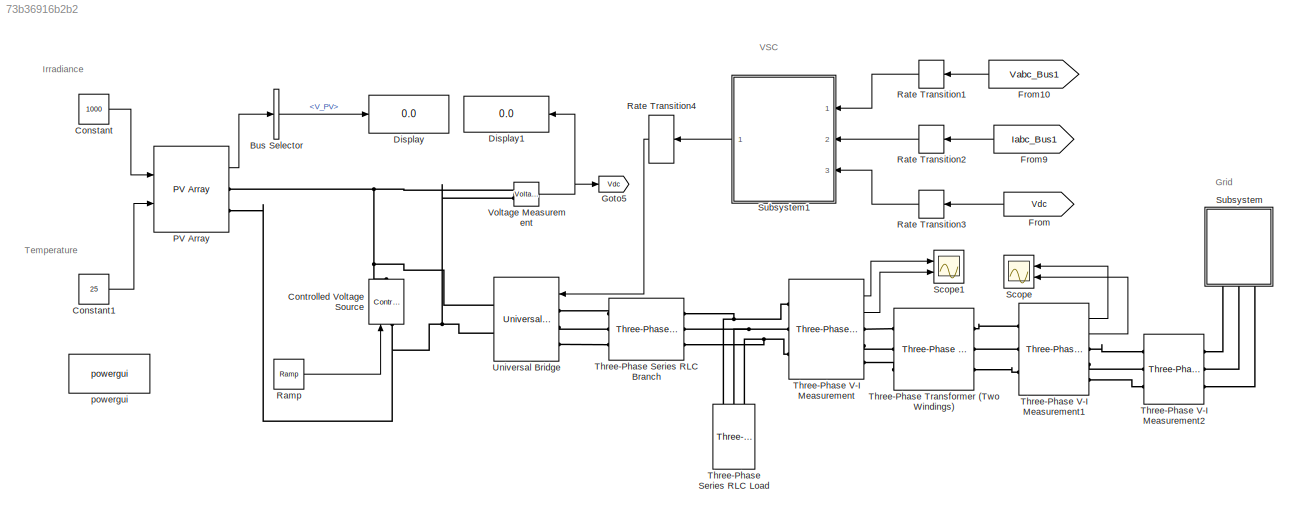
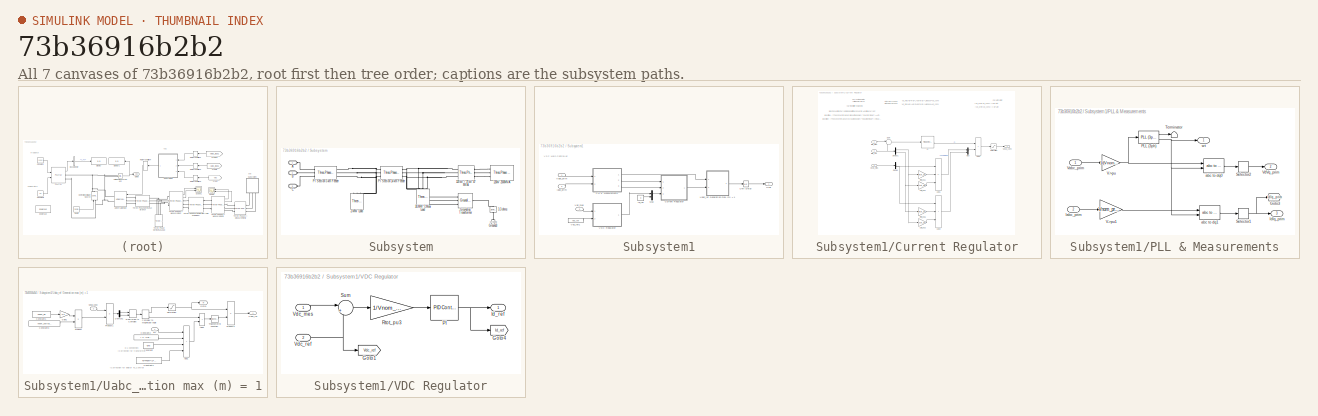
[diagram: thumbnail index - all 7 canvases of the model, root first then tree order]
MODEL slx_73b36916b2b2
KIND model
CONFIG AbsTol = auto
CONFIG EnableMultiTasking = off
CONFIG FixedStep = auto
CONFIG MaxStep = auto
CONFIG MinStep = auto
CONFIG RelTol = 1e-3
CONFIG SampleTimeConstraint = Unconstrained
CONFIG Solver = VariableStepAuto
CONFIG SolverName = VariableStepAuto
CONFIG StartTime = 0.0
CONFIG StopTime = 1
BLOCK [BusSelector] Bus Selector
  OutputSignals = V_PV
  Ports = [1, 1]
BLOCK [Constant] Constant
  Value = 1000
BLOCK [Constant] Constant1
  Value = 25
BLOCK [Reference] Controlled Voltage Source  REF=powerlib/Electrical
Sources/Controlled Voltage Source
  NameLocation = left
  Ports = [1, 0, 0, 0, 0, 1, 1]
  SourceBlock = powerlib/Electrical\nSources/Controlled Voltage Source
  SourceProductBaseCode = PS
  SourceType = Controlled Voltage Source
BLOCK [Display] Display
  Decimation = 1
  Ports = [1]
BLOCK [Display] Display1
  Decimation = 2000
  Format = bank
  Ports = [1]
BLOCK [From] From
  GotoTag = Vdc
  TagVisibility = global
BLOCK [From] From10
  CloseFcn = tagdialog Close
  GotoTag = Vabc_Bus1
  TagVisibility = global
BLOCK [From] From9
  CloseFcn = tagdialog Close
  GotoTag = Iabc_Bus1
  TagVisibility = global
BLOCK [Goto] Goto5
  GotoTag = Vdc
  TagVisibility = global
BLOCK [Reference] PV Array  REF=re_lib/Solar/PV Array
  Ports = [2, 1, 0, 0, 0, 0, 2]
  SourceBlock = re_lib/Solar/PV Array
  SourceProductBaseCode = PS
  SourceType = PV array
BLOCK [Reference] Ramp  REF=simulink/Sources/Ramp
  Ports = [0, 1]
  SourceBlock = simulink/Sources/Ramp
  SourceProductBaseCode = SL
  SourceType = Ramp
BLOCK [RateTransition] Rate Transition1
  NameLocation = top
  OutPortSampleTime = 1e-4
BLOCK [RateTransition] Rate Transition2
  NameLocation = top
  OutPortSampleTime = 1e-4
BLOCK [RateTransition] Rate Transition3
  OutPortSampleTime = 1e-4
BLOCK [RateTransition] Rate Transition4
  NameLocation = top
  OutPortSampleTime = 5e-5
BLOCK [Scope] Scope
  Floating = off
  NameLocation = top
  NumInputPorts = 2
  Ports = [2]
  ScopeSpecificationString = Simulink.scopes.TimeScopeBlockCfg('CurrentConfiguration', extmgr.ConfigurationSet(extmgr.Configuration('Core','General UI',true,'FigureColor',[1 1 1]),extmgr.Configuration('Core','Source UI',true),extmgr.Configuration('Sources','WiredSimulink',true,'DataLoggingVariableName','ScopeData1'),extmgr.Configuration('Visuals','Time Domain',true,'SerializedDisplays',{struct('MinYLimReal','-24616.27198','Ma...<+3019ch>
BLOCK [Scope] Scope1
  Floating = off
  NumInputPorts = 2
  Ports = [2]
  ScopeSpecificationString = Simulink.scopes.TimeScopeBlockCfg('CurrentConfiguration', extmgr.ConfigurationSet(extmgr.Configuration('Core','General UI',true,'FigureColor',[1 1 1]),extmgr.Configuration('Core','Source UI',true),extmgr.Configuration('Sources','WiredSimulink',true,'DataLoggingVariableName','ScopeData2'),extmgr.Configuration('Visuals','Time Domain',true,'SerializedDisplays',{struct('MinYLimReal','-318.2004','MaxYL...<+3007ch>
BLOCK [SubSystem] Subsystem
  NameLocation = left
  Ports = [0, 0, 0, 0, 0, 3]
  RequestExecContextInheritance = off
BLOCK [Reference] Subsystem/120 kV // 25 kV 47 MVA  REF=powerlib/Elements/Three-Phase
Transformer
(Two Windings)
  AttributesFormatString = \n
  Ports = [0, 0, 0, 0, 0, 3, 3]
  SourceBlock = powerlib/Elements/Three-Phase\nTransformer\n(Two Windings)
  SourceProductBaseCode = PS
  SourceType = Three-Phase Transformer (Two Windings)
BLOCK [Reference] Subsystem/120kV 2500MVA  REF=powerlib/Electrical
Sources/Three-Phase Source
  Ports = [0, 0, 0, 0, 0, 0, 3]
  SourceBlock = powerlib/Electrical\nSources/Three-Phase Source
  SourceProductBaseCode = PS
  SourceType = Three-Phase Source
BLOCK [Reference] Subsystem/2-MW Load  REF=powerlib/Elements/Three-Phase
Parallel RLC Load
  AttributesFormatString = \n
  NameLocation = left
  Ports = [0, 0, 0, 0, 0, 3]
  SourceBlock = powerlib/Elements/Three-Phase\nParallel RLC Load
  SourceProductBaseCode = PS
  SourceType = Three-Phase Parallel RLC Load
BLOCK [Reference] Subsystem/3.3 ohms   REF=powerlib/Elements/Series RLC Branch
  NameLocation = right
  Ports = [0, 0, 0, 0, 0, 1, 1]
  SourceBlock = powerlib/Elements/Series RLC Branch
  SourceProductBaseCode = PS
  SourceType = Series RLC Branch
BLOCK [Reference] Subsystem/30-MW 2-Mvar Load  REF=powerlib/Elements/Three-Phase
Parallel RLC Load
  AttributesFormatString = \n
  NameLocation = left
  Ports = [0, 0, 0, 0, 0, 3]
  SourceBlock = powerlib/Elements/Three-Phase\nParallel RLC Load
  SourceProductBaseCode = PS
  SourceType = Three-Phase Parallel RLC Load
BLOCK [PMIOPort] Subsystem/A
  Side = Left
BLOCK [PMIOPort] Subsystem/B
  Port = 2
  Side = Left
BLOCK [PMIOPort] Subsystem/C
  Port = 3
  Side = Left
BLOCK [Reference] Subsystem/Ground3  REF=powerlib/Elements/Ground
  AttributesFormatString = \n
  NameLocation = right
  Ports = [0, 0, 0, 0, 0, 1]
  SourceBlock = powerlib/Elements/Ground
  SourceProductBaseCode = PS
  SourceType = Ground
BLOCK [Reference] Subsystem/Grounding Transformer   REF=powerlib/Elements/Grounding
Transformer 
  Ports = [0, 0, 0, 0, 0, 3, 1]
  SourceBlock = powerlib/Elements/Grounding\nTransformer
  SourceProductBaseCode = PS
  SourceType = Grounding Transformer
BLOCK [Reference] Subsystem/PI Section 14 km Feeder  REF=powerlib/Elements/Three-Phase
PI Section Line
  AttributesFormatString = \n
  Ports = [0, 0, 0, 0, 0, 3, 3]
  SourceBlock = powerlib/Elements/Three-Phase\nPI Section Line
  SourceProductBaseCode = PS
  SourceType = Three-Phase PI Section Line
BLOCK [Reference] Subsystem/PI Section 5 km Feeder  REF=powerlib/Elements/Three-Phase
PI Section Line
  AttributesFormatString = \n
  Ports = [0, 0, 0, 0, 0, 3, 3]
  SourceBlock = powerlib/Elements/Three-Phase\nPI Section Line
  SourceProductBaseCode = PS
  SourceType = Three-Phase PI Section Line
BLOCK [SubSystem] Subsystem1
  Ports = [3, 1]
  RequestExecContextInheritance = off
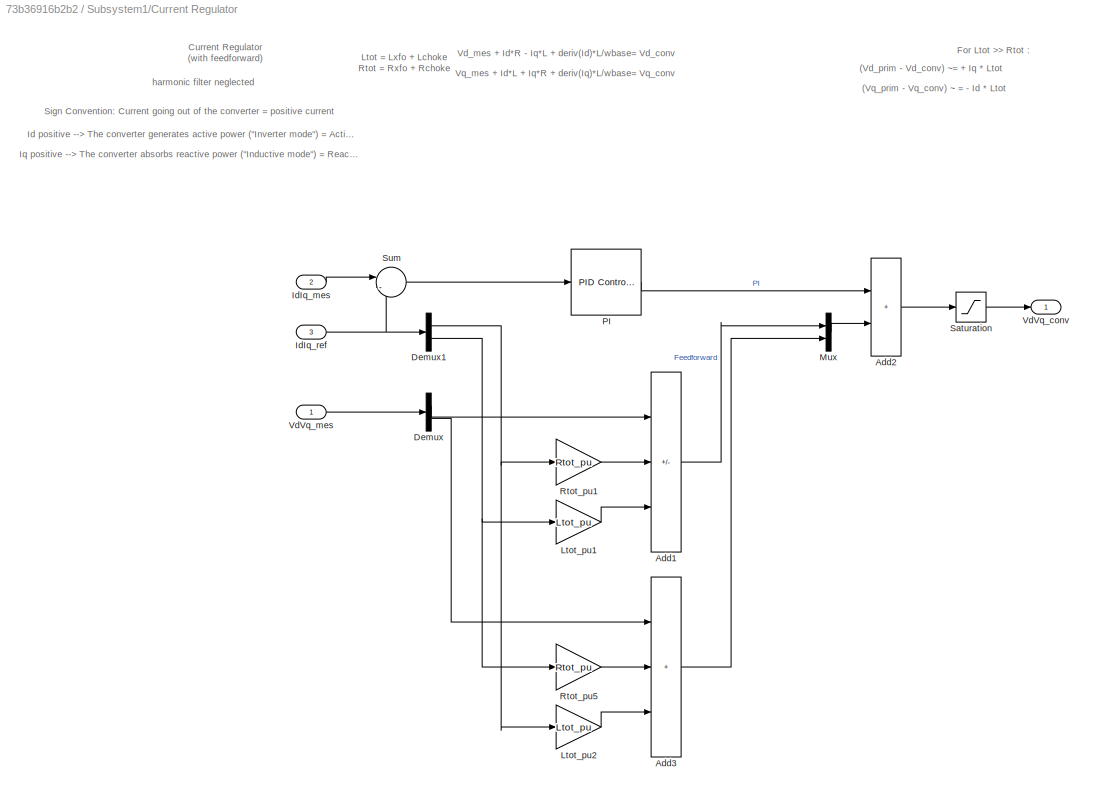
BLOCK [SubSystem] Subsystem1/Current Regulator
  Ports = [3, 1]
  RequestExecContextInheritance = off
BLOCK [Sum] Subsystem1/Current Regulator/Add1
  IconShape = rectangular
  Inputs = ++-
  Ports = [3, 1]
BLOCK [Sum] Subsystem1/Current Regulator/Add2
  IconShape = rectangular
  Ports = [2, 1]
BLOCK [Sum] Subsystem1/Current Regulator/Add3
  IconShape = rectangular
  Inputs = +++
  Ports = [3, 1]
BLOCK [Demux] Subsystem1/Current Regulator/Demux
  Outputs = 2
  Ports = [1, 2]
BLOCK [Demux] Subsystem1/Current Regulator/Demux1
  Outputs = 2
  Ports = [1, 2]
BLOCK [Inport] Subsystem1/Current Regulator/IdIq_mes
  Port = 2
  PortDimensions = 2
BLOCK [Inport] Subsystem1/Current Regulator/IdIq_ref
  Port = 3
  PortDimensions = 2
BLOCK [Gain] Subsystem1/Current Regulator/Ltot_pu1
  Gain = Ltot_pu
  OutDataTypeStr = Inherit: Same as input
  ParamDataTypeStr = Inherit: Same as input
  SaturateOnIntegerOverflow = on
BLOCK [Gain] Subsystem1/Current Regulator/Ltot_pu2
  Gain = Ltot_pu
  OutDataTypeStr = Inherit: Same as input
  ParamDataTypeStr = Inherit: Same as input
  SaturateOnIntegerOverflow = on
BLOCK [Mux] Subsystem1/Current Regulator/Mux
  DisplayOption = bar
  Inputs = 2
  Ports = [2, 1]
BLOCK [Reference] Subsystem1/Current Regulator/PI  REF=simulink/Continuous/PID Controller
  Ports = [1, 1]
  SourceBlock = simulink/Continuous/PID Controller
  SourceProductBaseCode = SL
  SourceType = PID 1dof
BLOCK [Gain] Subsystem1/Current Regulator/Rtot_pu1
  Gain = Rtot_pu
  NameLocation = top
  OutDataTypeStr = Inherit: Same as input
  ParamDataTypeStr = Inherit: Same as input
  SaturateOnIntegerOverflow = on
BLOCK [Gain] Subsystem1/Current Regulator/Rtot_pu5
  Gain = Rtot_pu
  NameLocation = top
  OutDataTypeStr = Inherit: Same as input
  ParamDataTypeStr = Inherit: Same as input
  SaturateOnIntegerOverflow = on
BLOCK [Saturate] Subsystem1/Current Regulator/Saturation
  LowerLimit = -2
  UpperLimit = 2
BLOCK [Sum] Subsystem1/Current Regulator/Sum
  Inputs = |-+
  Ports = [2, 1]
BLOCK [Outport] Subsystem1/Current Regulator/VdVq_conv
  VectorParamsAs1DForOutWhenUnconnected = off
BLOCK [Inport] Subsystem1/Current Regulator/VdVq_mes
  PortDimensions = 2
BLOCK [Inport] Subsystem1/Iabc_prim
  Port = 2
  PortDimensions = 3
BLOCK [Constant] Subsystem1/Iq_ref
  Value = 0
BLOCK [Mux] Subsystem1/Mux
  DisplayOption = bar
  Inputs = 2
  Ports = [2, 1]
BLOCK [SubSystem] Subsystem1/PLL & Measurements
  Ports = [2, 3]
  RequestExecContextInheritance = off
BLOCK [Goto] Subsystem1/PLL & Measurements/Goto3
  GotoTag = IdIq_prim
  TagVisibility = global
BLOCK [Inport] Subsystem1/PLL & Measurements/Iabc_prim
  Port = 2
BLOCK [Outport] Subsystem1/PLL & Measurements/IdIq_prim
  Port = 3
  VectorParamsAs1DForOutWhenUnconnected = off
BLOCK [Reference] Subsystem1/PLL & Measurements/PLL (3ph)  REF=powerlib_meascontrol/PLL/PLL
(3ph)
  Ports = [1, 2]
  SourceBlock = powerlib_meascontrol/PLL/PLL\n(3ph)
  SourceProductBaseCode = PS
  SourceType = PLL (3ph)
BLOCK [Selector] Subsystem1/PLL & Measurements/Selector1
  IndexOptions = Index vector (dialog)
  Indices = [1 2]
  InputPortWidth = 3
  OutputSizes = 1
  Ports = [1, 1]
BLOCK [Selector] Subsystem1/PLL & Measurements/Selector2
  IndexOptions = Index vector (dialog)
  Indices = [1 2]
  InputPortWidth = 3
  OutputSizes = 1
  Ports = [1, 1]
BLOCK [Terminator] Subsystem1/PLL & Measurements/Terminator
BLOCK [Gain] Subsystem1/PLL & Measurements/V->pu
  Gain = 1/(Vnom_prim*sqrt(2)/sqrt(3))
  OutDataTypeStr = Inherit: Same as input
  ParamDataTypeStr = Inherit: Same as input
  SaturateOnIntegerOverflow = on
BLOCK [Gain] Subsystem1/PLL & Measurements/V->pu1
  Gain = Vnom_prim*sqrt(3)/Pnom/sqrt(2)
  OutDataTypeStr = Inherit: Same as input
  ParamDataTypeStr = Inherit: Same as input
  SaturateOnIntegerOverflow = on
BLOCK [Inport] Subsystem1/PLL & Measurements/Vabc_prim
BLOCK [Outport] Subsystem1/PLL & Measurements/VdVq_prim
  Port = 2
  VectorParamsAs1DForOutWhenUnconnected = off
BLOCK [Reference] Subsystem1/PLL & Measurements/abc to dq0  REF=powerlib_meascontrol/Transformations/abc to dq0
  Ports = [2, 1]
  SourceBlock = powerlib_meascontrol/Transformations/abc to dq0
  SourceProductBaseCode = PS
  SourceType = abc to dq0 Transformation
BLOCK [Reference] Subsystem1/PLL & Measurements/abc to dq1  REF=powerlib_meascontrol/Transformations/abc to dq0
  Ports = [2, 1]
  SourceBlock = powerlib_meascontrol/Transformations/abc to dq0
  SourceProductBaseCode = PS
  SourceType = abc to dq0 Transformation
BLOCK [Outport] Subsystem1/PLL & Measurements/wt
  VectorParamsAs1DForOutWhenUnconnected = off
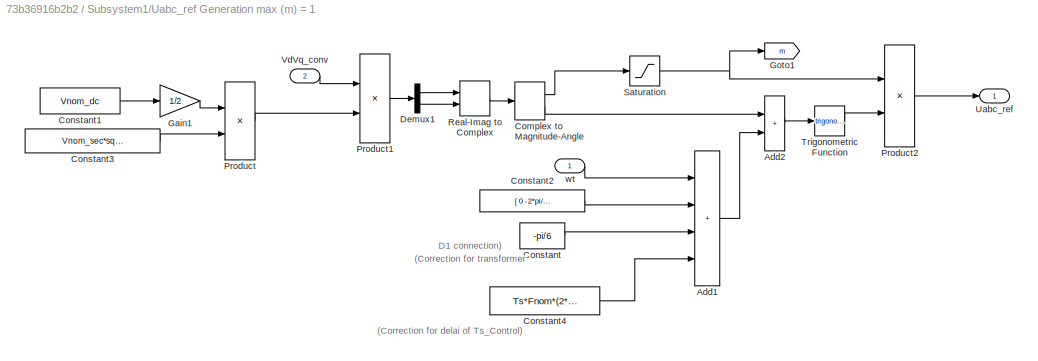
BLOCK [SubSystem] Subsystem1/Uabc_ref Generation max (m) = 1
  Ports = [2, 1]
  RequestExecContextInheritance = off
BLOCK [Sum] Subsystem1/Uabc_ref Generation max (m) = 1/Add1
  IconShape = rectangular
  Inputs = ++++
  Ports = [4, 1]
BLOCK [Sum] Subsystem1/Uabc_ref Generation max (m) = 1/Add2
  IconShape = rectangular
  Ports = [2, 1]
BLOCK [ComplexToMagnitudeAngle] Subsystem1/Uabc_ref Generation max (m) = 1/Complex to Magnitude-Angle
  Ports = [1, 2]
BLOCK [Constant] Subsystem1/Uabc_ref Generation max (m) = 1/Constant
  Value = -pi/6
BLOCK [Constant] Subsystem1/Uabc_ref Generation max (m) = 1/Constant1
  Value = Vnom_dc
BLOCK [Constant] Subsystem1/Uabc_ref Generation max (m) = 1/Constant2
  Value = [ 0  -2*pi/3  2*pi/3  ]
BLOCK [Constant] Subsystem1/Uabc_ref Generation max (m) = 1/Constant3
  Value = Vnom_sec*sqrt(2)/sqrt(3)
BLOCK [Constant] Subsystem1/Uabc_ref Generation max (m) = 1/Constant4
  Value = Ts*Fnom*(2*pi)
BLOCK [Demux] Subsystem1/Uabc_ref Generation max (m) = 1/Demux1
  Outputs = 2
  Ports = [1, 2]
BLOCK [Gain] Subsystem1/Uabc_ref Generation max (m) = 1/Gain1
  Gain = 1/2
BLOCK [Goto] Subsystem1/Uabc_ref Generation max (m) = 1/Goto1
  GotoTag = m
  TagVisibility = global
BLOCK [Product] Subsystem1/Uabc_ref Generation max (m) = 1/Product
  Inputs = */
  Ports = [2, 1]
  RndMeth = Zero
BLOCK [Product] Subsystem1/Uabc_ref Generation max (m) = 1/Product1
  Inputs = */
  Ports = [2, 1]
  RndMeth = Zero
BLOCK [Product] Subsystem1/Uabc_ref Generation max (m) = 1/Product2
  Inputs = **
  Ports = [2, 1]
  RndMeth = Zero
BLOCK [RealImagToComplex] Subsystem1/Uabc_ref Generation max (m) = 1/Real-Imag to Complex
  Ports = [2, 1]
BLOCK [Saturate] Subsystem1/Uabc_ref Generation max (m) = 1/Saturation
  LowerLimit = 0
  UpperLimit = 1
BLOCK [Trigonometry] Subsystem1/Uabc_ref Generation max (m) = 1/Trigonometric Function
  Ports = [1, 1]
BLOCK [Outport] Subsystem1/Uabc_ref Generation max (m) = 1/Uabc_ref
  VectorParamsAs1DForOutWhenUnconnected = off
BLOCK [Inport] Subsystem1/Uabc_ref Generation max (m) = 1/VdVq_conv
  Port = 2
BLOCK [Inport] Subsystem1/Uabc_ref Generation max (m) = 1/wt
BLOCK [UnitDelay] Subsystem1/Unit Delay
  HasFrameUpgradeWarning = on
  SampleTime = Ts_Control
BLOCK [Outport] Subsystem1/Uref
  NameLocation = top
  VectorParamsAs1DForOutWhenUnconnected = off
BLOCK [SubSystem] Subsystem1/VDC Regulator
  Ports = [2, 1]
  RequestExecContextInheritance = off
BLOCK [Goto] Subsystem1/VDC Regulator/Goto1
  GotoTag = Vdc_ref
  TagVisibility = global
BLOCK [Goto] Subsystem1/VDC Regulator/Goto4
  GotoTag = Id_ref
  TagVisibility = global
BLOCK [Outport] Subsystem1/VDC Regulator/Id_ref
  InitialOutput = 0
  SampleTime = Ts
  VectorParamsAs1DForOutWhenUnconnected = off
BLOCK [Reference] Subsystem1/VDC Regulator/PI  REF=simulink/Continuous/PID Controller
  Ports = [1, 1]
  SourceBlock = simulink/Continuous/PID Controller
  SourceProductBaseCode = SL
  SourceType = PID 1dof
BLOCK [Gain] Subsystem1/VDC Regulator/Rtot_pu3
  Gain = 1/Vnom_dc
  OutDataTypeStr = Inherit: Same as input
  ParamDataTypeStr = Inherit: Same as input
  SaturateOnIntegerOverflow = on
BLOCK [Sum] Subsystem1/VDC Regulator/Sum
  Inputs = |+-
  Ports = [2, 1]
BLOCK [Inport] Subsystem1/VDC Regulator/Vdc_mes
  PortDimensions = 1
BLOCK [Inport] Subsystem1/VDC Regulator/Vdc_ref
  Port = 2
  PortDimensions = 1
BLOCK [Inport] Subsystem1/Vabc_prim
  PortDimensions = 3
BLOCK [Inport] Subsystem1/Vdc_mes
  Port = 3
  PortDimensions = 1
BLOCK [Constant] Subsystem1/Vdc_ref1
  Value = Vdc_ref
BLOCK [Reference] Three-Phase Series RLC Branch  REF=powerlib/Elements/Three-Phase
Series RLC Branch
  AttributesFormatString = \n
  Ports = [0, 0, 0, 0, 0, 3, 3]
  SourceBlock = powerlib/Elements/Three-Phase\nSeries RLC Branch
  SourceProductBaseCode = PS
  SourceType = Three-Phase Series RLC Branch
BLOCK [Reference] Three-Phase Series RLC Load  REF=powerlib/Elements/Three-Phase
Series RLC Load
  AttributesFormatString = \n
  NameLocation = left
  Ports = [0, 0, 0, 0, 0, 3]
  SourceBlock = powerlib/Elements/Three-Phase\nSeries RLC Load
  SourceProductBaseCode = PS
  SourceType = Three-Phase Series RLC Load
BLOCK [Reference] Three-Phase Transformer (Two Windings)  REF=powerlib/Elements/Three-Phase
Transformer
(Two Windings)
  Ports = [0, 0, 0, 0, 0, 3, 3]
  SourceBlock = powerlib/Elements/Three-Phase\nTransformer\n(Two Windings)
  SourceProductBaseCode = PS
  SourceType = Three-Phase Transformer (Two Windings)
BLOCK [Reference] Three-Phase V-I Measurement  REF=powerlib/Measurements/Three-Phase
V-I Measurement
  Ports = [0, 2, 0, 0, 0, 3, 3]
  SourceBlock = powerlib/Measurements/Three-Phase\nV-I Measurement
  SourceProductBaseCode = PS
  SourceType = Three-Phase VI Measurement
BLOCK [Reference] Three-Phase V-I Measurement1  REF=powerlib/Measurements/Three-Phase
V-I Measurement
  Ports = [0, 2, 0, 0, 0, 3, 3]
  SourceBlock = powerlib/Measurements/Three-Phase\nV-I Measurement
  SourceProductBaseCode = PS
  SourceType = Three-Phase VI Measurement
BLOCK [Reference] Three-Phase V-I Measurement2  REF=powerlib/Measurements/Three-Phase
V-I Measurement
  Ports = [0, 0, 0, 0, 0, 3, 3]
  SourceBlock = powerlib/Measurements/Three-Phase\nV-I Measurement
  SourceProductBaseCode = PS
  SourceType = Three-Phase VI Measurement
BLOCK [Reference] Universal Bridge  REF=powerlib/Power
Electronics/Universal Bridge
  Ports = [1, 0, 0, 0, 0, 3, 2]
  SourceBlock = powerlib/Power\nElectronics/Universal Bridge
  SourceProductBaseCode = PS
  SourceType = Universal Bridge
BLOCK [Reference] Voltage Measurement   REF=powerlib/Measurements/Voltage Measurement
  AttributesFormatString = \n
  Ports = [0, 1, 0, 0, 0, 2]
  SourceBlock = powerlib/Measurements/Voltage Measurement
  SourceProductBaseCode = PS
  SourceType = Voltage Measurement
  Tag = PoWeRsYsTeMmEaSuReMeNt
BLOCK [Reference] powergui  REF=powerlib/powergui
  Ports = []
  Priority = 1
  SourceBlock = powerlib/powergui
  SourceProductBaseCode = PS
  SourceType = PSB option menu block
ANNOTATION (root): Grid
ANNOTATION (root): Irradiance
ANNOTATION (root): Temperature
ANNOTATION (root): VSC
ANNOTATION Subsystem1: VSC Main Controller
ANNOTATION Subsystem1/Current Regulator: (Vd_prim - Vd_conv) ~= + Iq * Ltot
ANNOTATION Subsystem1/Current Regulator: (Vq_prim - Vq_conv) ~ = - Id * Ltot
ANNOTATION Subsystem1/Current Regulator: Current Regulator (with feedforward)
ANNOTATION Subsystem1/Current Regulator: For Ltot >> Rtot :
ANNOTATION Subsystem1/Current Regulator: Id positive --> The converter generates active power ("Inverter mode") = Active Power P positive
ANNOTATION Subsystem1/Current Regulator: Iq positive --> The converter absorbs reactive power ("Inductive mode") = Reactive Power Q negative
ANNOTATION Subsystem1/Current Regulator: Ltot = Lxfo + Lchoke Rtot = Rxfo + Rchoke
ANNOTATION Subsystem1/Current Regulator: Sign Convention: Current going out of the converter = positive current
ANNOTATION Subsystem1/Current Regulator: Vd_mes + Id*R - Iq*L + deriv(Id)*L/wbase= Vd_conv
ANNOTATION Subsystem1/Current Regulator: Vq_mes + Id*L + Iq*R + deriv(Iq)*L/wbase= Vq_conv
ANNOTATION Subsystem1/Current Regulator: harmonic filter neglected
ANNOTATION Subsystem1/Uabc_ref Generation max (m) = 1: (Correction for delai of Ts_Control)
ANNOTATION Subsystem1/Uabc_ref Generation max (m) = 1: (Correction for transformer D1 connection)
LINE Bus Selector:1 -> Display:1
LINE Constant1:1 -> PV Array:2
LINE Constant:1 -> PV Array:1
LINE From10:1 -> Rate Transition1:1
LINE From9:1 -> Rate Transition2:1
LINE From:1 -> Rate Transition3:1
LINE PV Array:1 -> Bus Selector:1
LINE Ramp:1 -> Controlled Voltage Source:1
LINE Rate Transition1:1 -> Subsystem1:1
LINE Rate Transition2:1 -> Subsystem1:2
LINE Rate Transition3:1 -> Subsystem1:3
LINE Rate Transition4:1 -> Universal Bridge:1
LINE Subsystem1/Current Regulator/Add1:1 -> Subsystem1/Current Regulator/Mux:1
LINE Subsystem1/Current Regulator/Add2:1 -> Subsystem1/Current Regulator/Saturation:1
LINE Subsystem1/Current Regulator/Add3:1 -> Subsystem1/Current Regulator/Mux:2
NET Subsystem1/Current Regulator/Demux1:1 -> Subsystem1/Current Regulator/Ltot_pu2:1, Subsystem1/Current Regulator/Rtot_pu1:1
NET Subsystem1/Current Regulator/Demux1:2 -> Subsystem1/Current Regulator/Ltot_pu1:1, Subsystem1/Current Regulator/Rtot_pu5:1
LINE Subsystem1/Current Regulator/Demux:1 -> Subsystem1/Current Regulator/Add1:1
LINE Subsystem1/Current Regulator/Demux:2 -> Subsystem1/Current Regulator/Add3:1
LINE Subsystem1/Current Regulator/IdIq_mes:1 -> Subsystem1/Current Regulator/Sum:1
NET Subsystem1/Current Regulator/IdIq_ref:1 -> Subsystem1/Current Regulator/Demux1:1, Subsystem1/Current Regulator/Sum:2
LINE Subsystem1/Current Regulator/Ltot_pu1:1 -> Subsystem1/Current Regulator/Add1:3
LINE Subsystem1/Current Regulator/Ltot_pu2:1 -> Subsystem1/Current Regulator/Add3:3
LINE Subsystem1/Current Regulator/Mux:1 -> Subsystem1/Current Regulator/Add2:2
LINE Subsystem1/Current Regulator/PI:1 -> Subsystem1/Current Regulator/Add2:1
LINE Subsystem1/Current Regulator/Rtot_pu1:1 -> Subsystem1/Current Regulator/Add1:2
LINE Subsystem1/Current Regulator/Rtot_pu5:1 -> Subsystem1/Current Regulator/Add3:2
LINE Subsystem1/Current Regulator/Saturation:1 -> Subsystem1/Current Regulator/VdVq_conv:1
LINE Subsystem1/Current Regulator/Sum:1 -> Subsystem1/Current Regulator/PI:1
LINE Subsystem1/Current Regulator/VdVq_mes:1 -> Subsystem1/Current Regulator/Demux:1
LINE Subsystem1/Current Regulator:1 -> Subsystem1/Uabc_ref Generation max (m) = 1:2
LINE Subsystem1/Iabc_prim:1 -> Subsystem1/PLL & Measurements:2
LINE Subsystem1/Iq_ref:1 -> Subsystem1/Mux:2
LINE Subsystem1/Mux:1 -> Subsystem1/Current Regulator:3
LINE Subsystem1/PLL & Measurements/Iabc_prim:1 -> Subsystem1/PLL & Measurements/V->pu1:1
LINE Subsystem1/PLL & Measurements/PLL (3ph):1 -> Subsystem1/PLL & Measurements/Terminator:1
NET Subsystem1/PLL & Measurements/PLL (3ph):2 -> Subsystem1/PLL & Measurements/abc to dq0:2, Subsystem1/PLL & Measurements/abc to dq1:2, Subsystem1/PLL & Measurements/wt:1
NET Subsystem1/PLL & Measurements/Selector1:1 -> Subsystem1/PLL & Measurements/Goto3:1, Subsystem1/PLL & Measurements/IdIq_prim:1
LINE Subsystem1/PLL & Measurements/Selector2:1 -> Subsystem1/PLL & Measurements/VdVq_prim:1
LINE Subsystem1/PLL & Measurements/V->pu1:1 -> Subsystem1/PLL & Measurements/abc to dq1:1
NET Subsystem1/PLL & Measurements/V->pu:1 -> Subsystem1/PLL & Measurements/PLL (3ph):1, Subsystem1/PLL & Measurements/abc to dq0:1
LINE Subsystem1/PLL & Measurements/Vabc_prim:1 -> Subsystem1/PLL & Measurements/V->pu:1
LINE Subsystem1/PLL & Measurements/abc to dq0:1 -> Subsystem1/PLL & Measurements/Selector2:1
LINE Subsystem1/PLL & Measurements/abc to dq1:1 -> Subsystem1/PLL & Measurements/Selector1:1
LINE Subsystem1/PLL & Measurements:1 -> Subsystem1/Uabc_ref Generation max (m) = 1:1
LINE Subsystem1/PLL & Measurements:2 -> Subsystem1/Current Regulator:1
LINE Subsystem1/PLL & Measurements:3 -> Subsystem1/Current Regulator:2
LINE Subsystem1/Uabc_ref Generation max (m) = 1/Add1:1 -> Subsystem1/Uabc_ref Generation max (m) = 1/Add2:2
LINE Subsystem1/Uabc_ref Generation max (m) = 1/Add2:1 -> Subsystem1/Uabc_ref Generation max (m) = 1/Trigonometric Function:1
LINE Subsystem1/Uabc_ref Generation max (m) = 1/Complex to Magnitude-Angle:1 -> Subsystem1/Uabc_ref Generation max (m) = 1/Saturation:1
LINE Subsystem1/Uabc_ref Generation max (m) = 1/Complex to Magnitude-Angle:2 -> Subsystem1/Uabc_ref Generation max (m) = 1/Add2:1
LINE Subsystem1/Uabc_ref Generation max (m) = 1/Constant1:1 -> Subsystem1/Uabc_ref Generation max (m) = 1/Gain1:1
LINE Subsystem1/Uabc_ref Generation max (m) = 1/Constant2:1 -> Subsystem1/Uabc_ref Generation max (m) = 1/Add1:2
LINE Subsystem1/Uabc_ref Generation max (m) = 1/Constant3:1 -> Subsystem1/Uabc_ref Generation max (m) = 1/Product:2
LINE Subsystem1/Uabc_ref Generation max (m) = 1/Constant4:1 -> Subsystem1/Uabc_ref Generation max (m) = 1/Add1:4
LINE Subsystem1/Uabc_ref Generation max (m) = 1/Constant:1 -> Subsystem1/Uabc_ref Generation max (m) = 1/Add1:3
LINE Subsystem1/Uabc_ref Generation max (m) = 1/Demux1:1 -> Subsystem1/Uabc_ref Generation max (m) = 1/Real-Imag to Complex:1
LINE Subsystem1/Uabc_ref Generation max (m) = 1/Demux1:2 -> Subsystem1/Uabc_ref Generation max (m) = 1/Real-Imag to Complex:2
LINE Subsystem1/Uabc_ref Generation max (m) = 1/Gain1:1 -> Subsystem1/Uabc_ref Generation max (m) = 1/Product:1
LINE Subsystem1/Uabc_ref Generation max (m) = 1/Product1:1 -> Subsystem1/Uabc_ref Generation max (m) = 1/Demux1:1
LINE Subsystem1/Uabc_ref Generation max (m) = 1/Product2:1 -> Subsystem1/Uabc_ref Generation max (m) = 1/Uabc_ref:1
LINE Subsystem1/Uabc_ref Generation max (m) = 1/Product:1 -> Subsystem1/Uabc_ref Generation max (m) = 1/Product1:2
LINE Subsystem1/Uabc_ref Generation max (m) = 1/Real-Imag to Complex:1 -> Subsystem1/Uabc_ref Generation max (m) = 1/Complex to Magnitude-Angle:1
NET Subsystem1/Uabc_ref Generation max (m) = 1/Saturation:1 -> Subsystem1/Uabc_ref Generation max (m) = 1/Goto1:1, Subsystem1/Uabc_ref Generation max (m) = 1/Product2:1
LINE Subsystem1/Uabc_ref Generation max (m) = 1/Trigonometric Function:1 -> Subsystem1/Uabc_ref Generation max (m) = 1/Product2:2
LINE Subsystem1/Uabc_ref Generation max (m) = 1/VdVq_conv:1 -> Subsystem1/Uabc_ref Generation max (m) = 1/Product1:1
LINE Subsystem1/Uabc_ref Generation max (m) = 1/wt:1 -> Subsystem1/Uabc_ref Generation max (m) = 1/Add1:1
LINE Subsystem1/Uabc_ref Generation max (m) = 1:1 -> Subsystem1/Unit Delay:1
LINE Subsystem1/Unit Delay:1 -> Subsystem1/Uref:1
NET Subsystem1/VDC Regulator/PI:1 -> Subsystem1/VDC Regulator/Goto4:1, Subsystem1/VDC Regulator/Id_ref:1
LINE Subsystem1/VDC Regulator/Rtot_pu3:1 -> Subsystem1/VDC Regulator/PI:1
LINE Subsystem1/VDC Regulator/Sum:1 -> Subsystem1/VDC Regulator/Rtot_pu3:1
LINE Subsystem1/VDC Regulator/Vdc_mes:1 -> Subsystem1/VDC Regulator/Sum:1
NET Subsystem1/VDC Regulator/Vdc_ref:1 -> Subsystem1/VDC Regulator/Goto1:1, Subsystem1/VDC Regulator/Sum:2
LINE Subsystem1/VDC Regulator:1 -> Subsystem1/Mux:1
LINE Subsystem1/Vabc_prim:1 -> Subsystem1/PLL & Measurements:1
LINE Subsystem1/Vdc_mes:1 -> Subsystem1/VDC Regulator:1
LINE Subsystem1/Vdc_ref1:1 -> Subsystem1/VDC Regulator:2
LINE Subsystem1:1 -> Rate Transition4:1
LINE Three-Phase V-I Measurement1:1 -> Scope:1
LINE Three-Phase V-I Measurement1:2 -> Scope:2
LINE Three-Phase V-I Measurement:1 -> Scope1:1
LINE Three-Phase V-I Measurement:2 -> Scope1:2
NET Voltage Measurement :1 -> Display1:1, Goto5:1
PNET net1: Controlled Voltage Source:LConn1 -- PV Array:RConn2 -- Universal Bridge:RConn2 -- Voltage Measurement :LConn2
PNET net2: Controlled Voltage Source:RConn1 -- PV Array:RConn1 -- Universal Bridge:RConn1 -- Voltage Measurement :LConn1
PLINE Subsystem/120 kV // 25 kV 47 MVA:LConn1 -- Subsystem/120kV 2500MVA:RConn1
PLINE Subsystem/120 kV // 25 kV 47 MVA:LConn2 -- Subsystem/120kV 2500MVA:RConn2
PLINE Subsystem/120 kV // 25 kV 47 MVA:LConn3 -- Subsystem/120kV 2500MVA:RConn3
PNET net3: Subsystem/120 kV // 25 kV 47 MVA:RConn1 -- Subsystem/30-MW 2-Mvar Load:LConn1 -- Subsystem/Grounding Transformer :LConn1 -- Subsystem/PI Section 14 km Feeder:RConn1
PNET net4: Subsystem/120 kV // 25 kV 47 MVA:RConn2 -- Subsystem/30-MW 2-Mvar Load:LConn2 -- Subsystem/Grounding Transformer :LConn2 -- Subsystem/PI Section 14 km Feeder:RConn2
PNET net5: Subsystem/120 kV // 25 kV 47 MVA:RConn3 -- Subsystem/30-MW 2-Mvar Load:LConn3 -- Subsystem/Grounding Transformer :LConn3 -- Subsystem/PI Section 14 km Feeder:RConn3
PNET net6: Subsystem/2-MW Load:LConn1 -- Subsystem/PI Section 14 km Feeder:LConn1 -- Subsystem/PI Section 5 km Feeder:RConn1
PNET net7: Subsystem/2-MW Load:LConn2 -- Subsystem/PI Section 14 km Feeder:LConn2 -- Subsystem/PI Section 5 km Feeder:RConn2
PNET net8: Subsystem/2-MW Load:LConn3 -- Subsystem/PI Section 14 km Feeder:LConn3 -- Subsystem/PI Section 5 km Feeder:RConn3
PLINE Subsystem/3.3 ohms :LConn1 -- Subsystem/Grounding Transformer :RConn1
PLINE Subsystem/3.3 ohms :RConn1 -- Subsystem/Ground3:LConn1
PLINE Subsystem/A:RConn1 -- Subsystem/PI Section 5 km Feeder:LConn1
PLINE Subsystem/B:RConn1 -- Subsystem/PI Section 5 km Feeder:LConn2
PLINE Subsystem/C:RConn1 -- Subsystem/PI Section 5 km Feeder:LConn3
PLINE Subsystem:LConn1 -- Three-Phase V-I Measurement2:RConn1
PLINE Subsystem:LConn2 -- Three-Phase V-I Measurement2:RConn2
PLINE Subsystem:LConn3 -- Three-Phase V-I Measurement2:RConn3
PLINE Three-Phase Series RLC Branch:LConn1 -- Universal Bridge:LConn1
PLINE Three-Phase Series RLC Branch:LConn2 -- Universal Bridge:LConn2
PLINE Three-Phase Series RLC Branch:LConn3 -- Universal Bridge:LConn3
PNET net9: Three-Phase Series RLC Branch:RConn1 -- Three-Phase Series RLC Load:LConn1 -- Three-Phase V-I Measurement:LConn1
PNET net10: Three-Phase Series RLC Branch:RConn2 -- Three-Phase Series RLC Load:LConn2 -- Three-Phase V-I Measurement:LConn2
PNET net11: Three-Phase Series RLC Branch:RConn3 -- Three-Phase Series RLC Load:LConn3 -- Three-Phase V-I Measurement:LConn3
PLINE Three-Phase Transformer (Two Windings):LConn1 -- Three-Phase V-I Measurement1:LConn1
PLINE Three-Phase Transformer (Two Windings):LConn2 -- Three-Phase V-I Measurement1:LConn2
PLINE Three-Phase Transformer (Two Windings):LConn3 -- Three-Phase V-I Measurement1:LConn3
PLINE Three-Phase Transformer (Two Windings):RConn1 -- Three-Phase V-I Measurement:RConn1
PLINE Three-Phase Transformer (Two Windings):RConn2 -- Three-Phase V-I Measurement:RConn2
PLINE Three-Phase Transformer (Two Windings):RConn3 -- Three-Phase V-I Measurement:RConn3
PLINE Three-Phase V-I Measurement1:RConn1 -- Three-Phase V-I Measurement2:LConn1
PLINE Three-Phase V-I Measurement1:RConn2 -- Three-Phase V-I Measurement2:LConn2
PLINE Three-Phase V-I Measurement1:RConn3 -- Three-Phase V-I Measurement2:LConn3
note: NET lines group one-source signal fan-out (src -> all destinations, sorted); 1:1 wires keep LINE; PNET lines group multi-terminal physical nets as a canonical sorted terminal list (undirected conserving connections); 2-terminal nets keep the pairwise PLINE form
